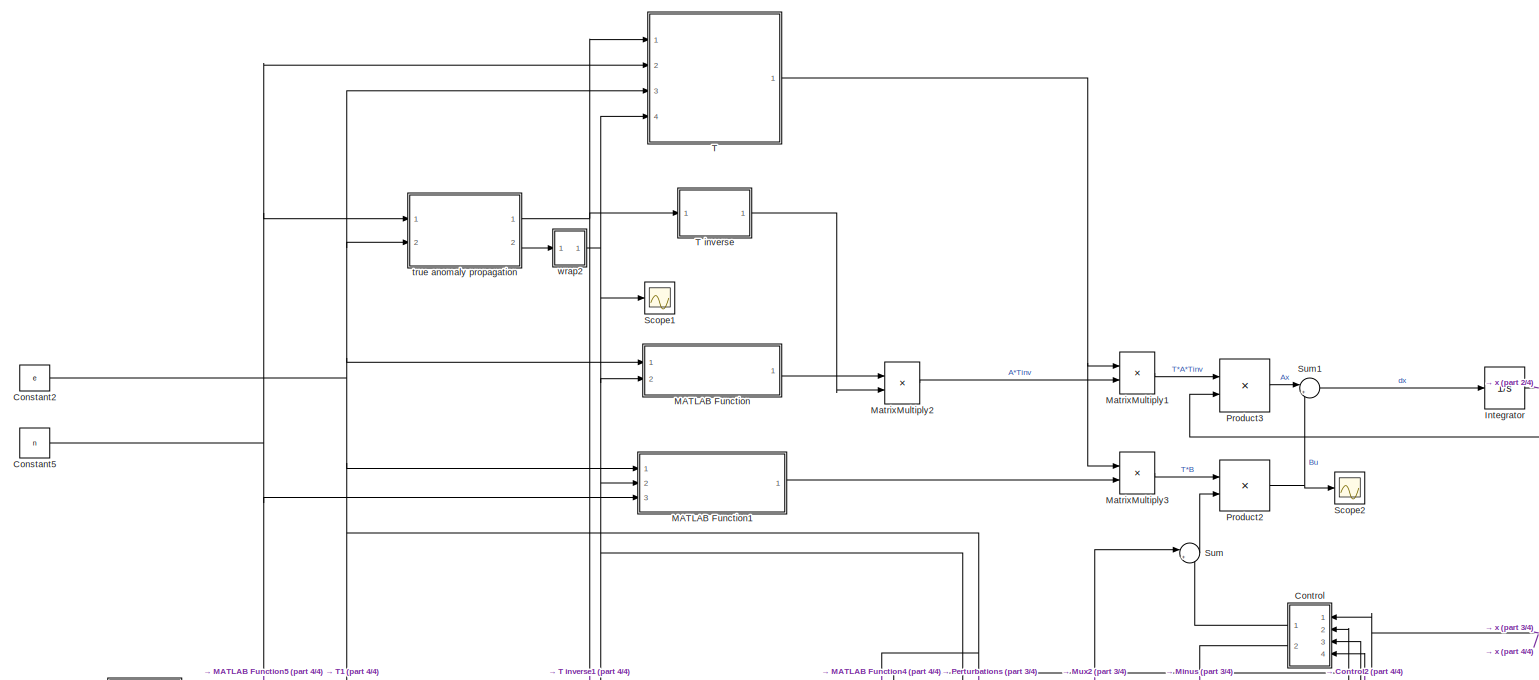
[diagram: root canvas - part 1/4, full width, top band]
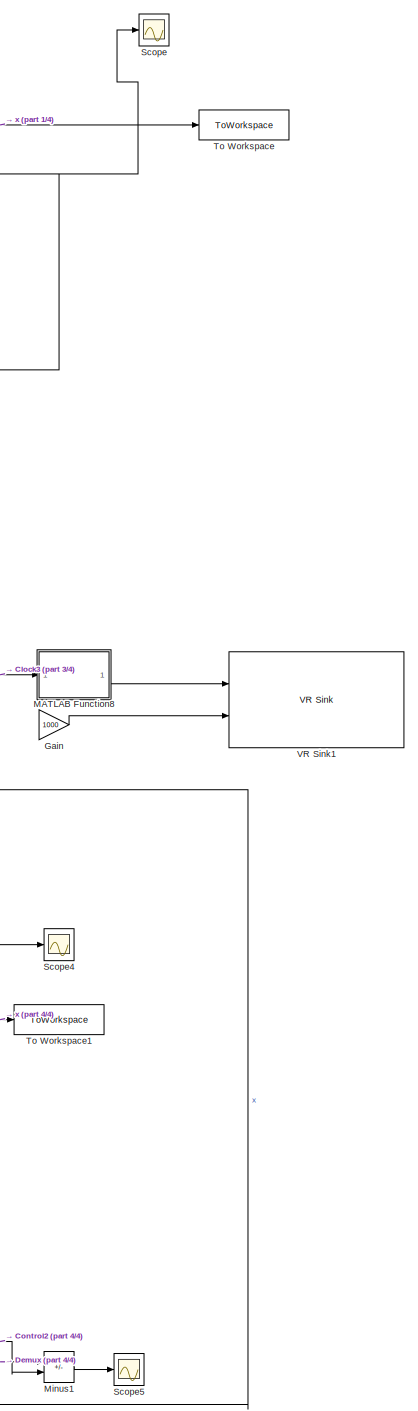
[diagram: root canvas - part 2/4, right side, full height]
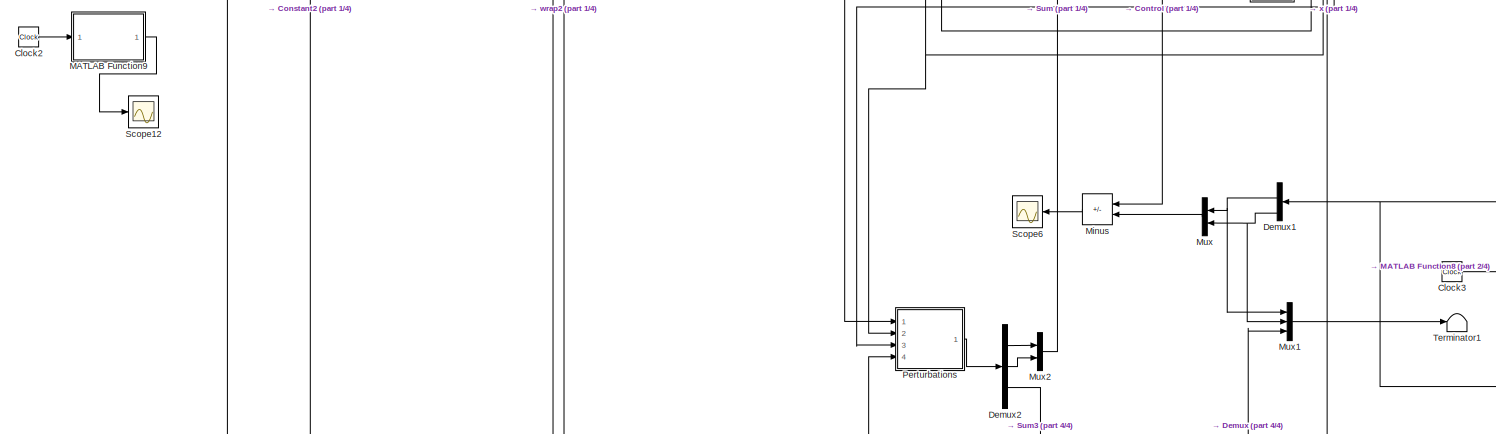
[diagram: root canvas - part 3/4, full width, middle band]
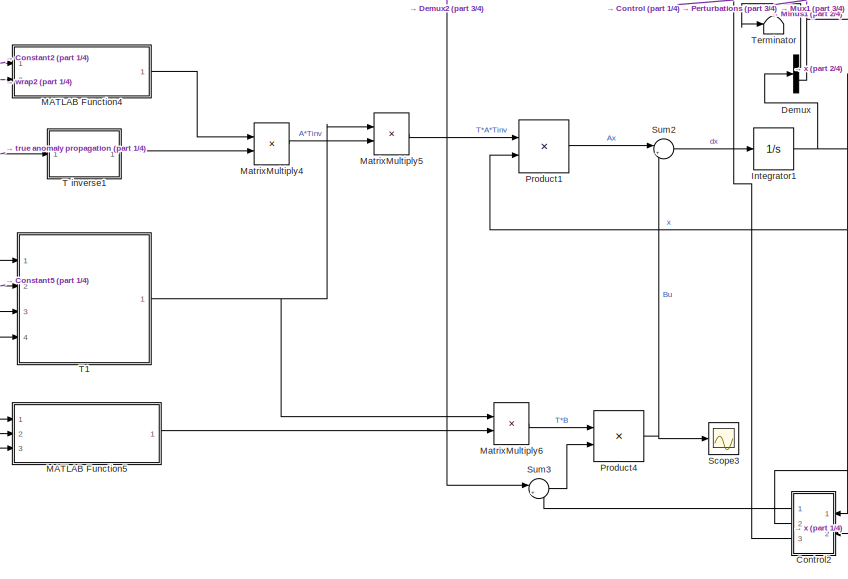
[diagram: root canvas - part 4/4, bottom center region]
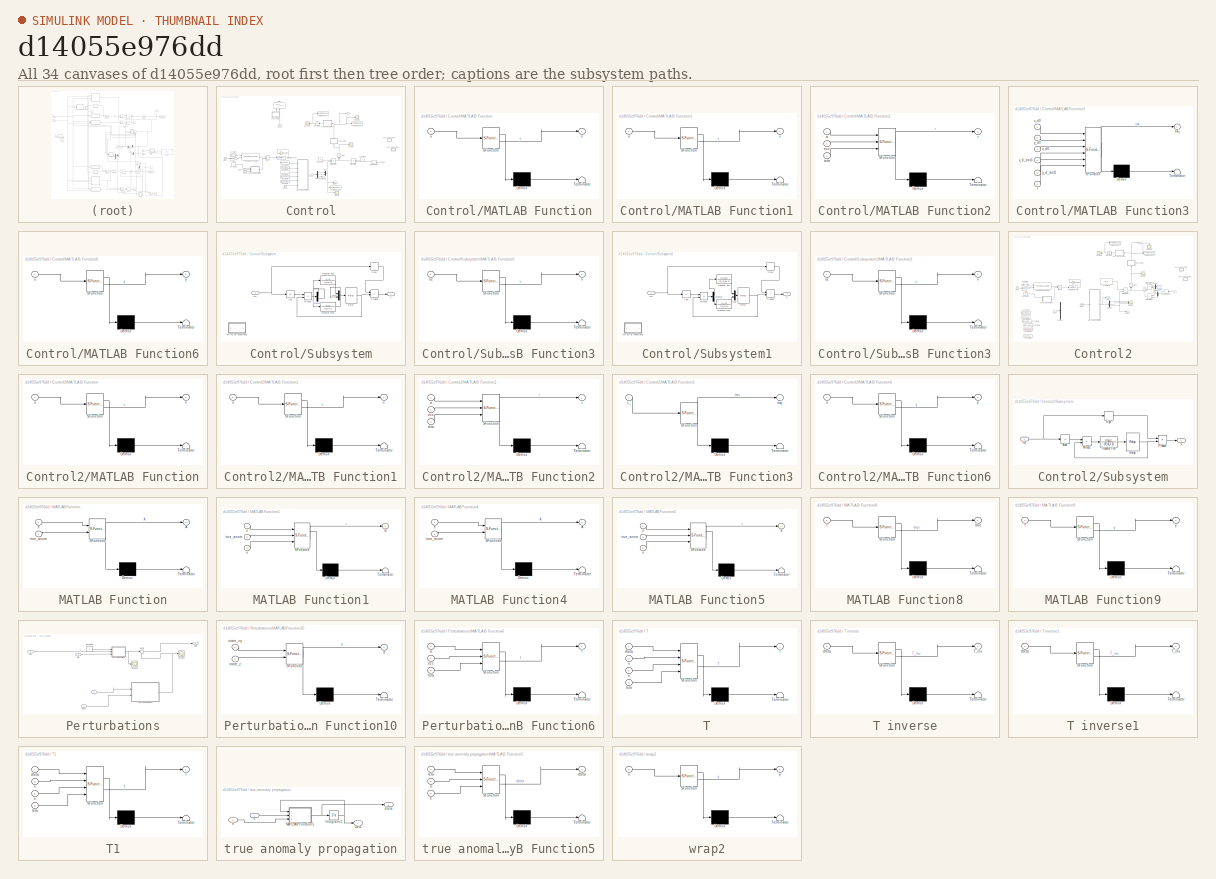
[diagram: thumbnail index - all 34 canvases of the model, root first then tree order]
MODEL slx_d14055e976dd
KIND model
CONFIG AbsTol = auto
CONFIG EnableMultiTasking = off
CONFIG FixedStep = auto
CONFIG MaxStep = auto
CONFIG MinStep = auto
CONFIG RelTol = 1e-3
CONFIG SampleTimeConstraint = Unconstrained
CONFIG SolverName = VariableStepAuto
CONFIG StartTime = 0.0
CONFIG StopTime = 10000
BLOCK [Clock] Clock2
  Commented = on
BLOCK [Clock] Clock3
  Commented = on
BLOCK [Constant] Constant2
  Value = e
BLOCK [Constant] Constant5
  Value = n
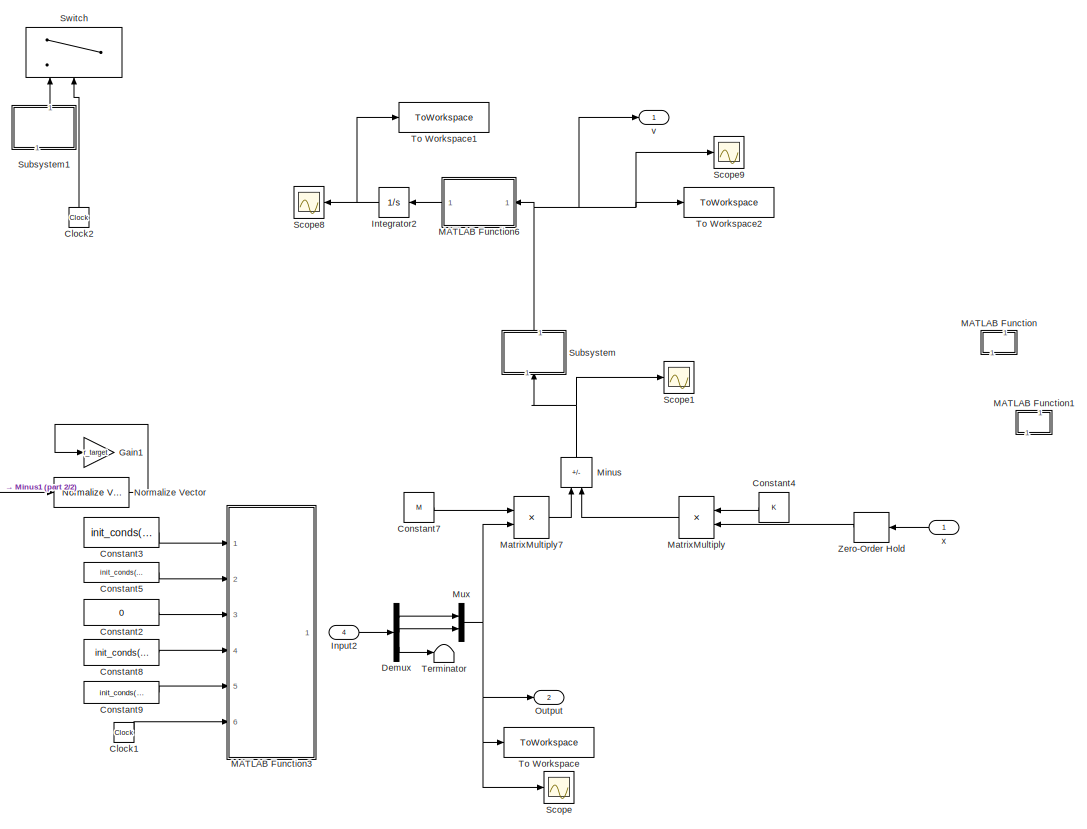
[diagram: Control - part 1/2, center side, full height]
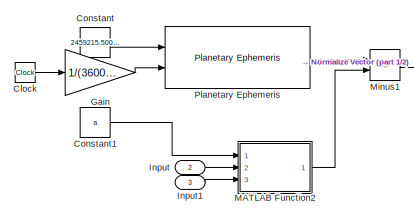
[diagram: Control - part 2/2, middle left region]
BLOCK [SubSystem] Control
  NameLocation = top
  Ports = [4, 2]
  RequestExecContextInheritance = off
BLOCK [Clock] Control/Clock
  Commented = on
BLOCK [Clock] Control/Clock1
  Commented = on
BLOCK [Clock] Control/Clock2
  Commented = on
  NameLocation = right
BLOCK [Constant] Control/Constant
  Commented = on
  Value = 2459215.50000
BLOCK [Constant] Control/Constant1
  Commented = on
  Value = a
BLOCK [Constant] Control/Constant2
  Commented = on
  Value = 0
BLOCK [Constant] Control/Constant3
  Commented = on
  Value = init_conds(2)
BLOCK [Constant] Control/Constant4
  NameLocation = top
  Value = K
BLOCK [Constant] Control/Constant5
  Commented = on
  Value = init_conds(4)
BLOCK [Constant] Control/Constant7
  Value = M
BLOCK [Constant] Control/Constant8
  Commented = on
  Value = init_conds(1)
BLOCK [Constant] Control/Constant9
  Commented = on
  Value = init_conds(3)
BLOCK [Demux] Control/Demux
  Outputs = 3
  Ports = [1, 3]
BLOCK [Gain] Control/Gain
  Commented = on
  Gain = 1/(3600*24)
BLOCK [Gain] Control/Gain1
  Commented = on
  Gain = r_target
BLOCK [Inport] Control/Input
  Port = 2
BLOCK [Inport] Control/Input1
  Port = 3
BLOCK [Inport] Control/Input2
  Port = 4
BLOCK [Integrator] Control/Integrator2
  NameLocation = top
  Ports = [1, 1]
BLOCK [SubSystem] Control/MATLAB Function
  Commented = through
  ErrorFcn = Stateflow.Translate.translate
  NameLocation = right
  PermitHierarchicalResolution = ExplicitOnly
  Ports = [1, 1]
  RequestExecContextInheritance = off
  SFBlockType = MATLAB Function
  TreatAsAtomicUnit = on
BLOCK [Demux] Control/MATLAB Function/ Demux 
  Outputs = 1
  Ports = [1, 1]
BLOCK [S-Function] Control/MATLAB Function/ SFunction 
  EnableBusSupport = on
  FunctionName = sf_sfun
  PortCounts = [1 2]
  Ports = [1, 2]
  SFcnIsStateOwnerBlock = off
  SFunctionDeploymentMode = off
  Tag = Stateflow S-Function 22
BLOCK [Terminator] Control/MATLAB Function/ Terminator 
BLOCK [Inport] Control/MATLAB Function/u
BLOCK [Outport] Control/MATLAB Function/v
BLOCK [SubSystem] Control/MATLAB Function1
  Commented = through
  ErrorFcn = Stateflow.Translate.translate
  NameLocation = right
  PermitHierarchicalResolution = ExplicitOnly
  Ports = [1, 1]
  RequestExecContextInheritance = off
  SFBlockType = MATLAB Function
  TreatAsAtomicUnit = on
BLOCK [Demux] Control/MATLAB Function1/ Demux 
  Outputs = 1
  Ports = [1, 1]
BLOCK [S-Function] Control/MATLAB Function1/ SFunction 
  EnableBusSupport = on
  FunctionName = sf_sfun
  PortCounts = [1 2]
  Ports = [1, 2]
  SFcnIsStateOwnerBlock = off
  SFunctionDeploymentMode = off
  Tag = Stateflow S-Function 23
BLOCK [Terminator] Control/MATLAB Function1/ Terminator 
BLOCK [Inport] Control/MATLAB Function1/u
BLOCK [Outport] Control/MATLAB Function1/v
BLOCK [SubSystem] Control/MATLAB Function2
  Commented = on
  ErrorFcn = Stateflow.Translate.translate
  PermitHierarchicalResolution = ExplicitOnly
  Ports = [3, 1]
  RequestExecContextInheritance = off
  SFBlockType = MATLAB Function
  TreatAsAtomicUnit = on
BLOCK [Demux] Control/MATLAB Function2/ Demux 
  Outputs = 1
  Ports = [1, 1]
BLOCK [S-Function] Control/MATLAB Function2/ SFunction 
  EnableBusSupport = on
  FunctionName = sf_sfun
  PortCounts = [3 2]
  Ports = [3, 2]
  SFcnIsStateOwnerBlock = off
  SFunctionDeploymentMode = off
  Tag = Stateflow S-Function 24
BLOCK [Terminator] Control/MATLAB Function2/ Terminator 
BLOCK [Inport] Control/MATLAB Function2/a
BLOCK [Inport] Control/MATLAB Function2/ecc
  Port = 2
BLOCK [Outport] Control/MATLAB Function2/r
BLOCK [Inport] Control/MATLAB Function2/teta
  Port = 3
BLOCK [SubSystem] Control/MATLAB Function3
  Commented = on
  ErrorFcn = Stateflow.Translate.translate
  PermitHierarchicalResolution = ExplicitOnly
  Ports = [6, 1]
  RequestExecContextInheritance = off
  SFBlockType = MATLAB Function
  TreatAsAtomicUnit = on
BLOCK [Demux] Control/MATLAB Function3/ Demux 
  Outputs = 1
  Ports = [1, 1]
BLOCK [S-Function] Control/MATLAB Function3/ SFunction 
  EnableBusSupport = on
  FunctionName = sf_sfun
  PortCounts = [6 2]
  Ports = [6, 2]
  SFcnIsStateOwnerBlock = off
  SFunctionDeploymentMode = off
  Tag = Stateflow S-Function 26
BLOCK [Terminator] Control/MATLAB Function3/ Terminator 
BLOCK [Inport] Control/MATLAB Function3/t
  Port = 6
BLOCK [Outport] Control/MATLAB Function3/traj
BLOCK [Inport] Control/MATLAB Function3/x_d0
BLOCK [Inport] Control/MATLAB Function3/x_d_dot0
  Port = 4
BLOCK [Inport] Control/MATLAB Function3/y_d0
  Port = 2
BLOCK [Inport] Control/MATLAB Function3/y_d_dot0
  Port = 5
BLOCK [Inport] Control/MATLAB Function3/z_d0
  Port = 3
BLOCK [SubSystem] Control/MATLAB Function6
  ErrorFcn = Stateflow.Translate.translate
  NameLocation = top
  PermitHierarchicalResolution = ExplicitOnly
  Ports = [1, 1]
  RequestExecContextInheritance = off
  SFBlockType = MATLAB Function
  TreatAsAtomicUnit = on
BLOCK [Demux] Control/MATLAB Function6/ Demux 
  Outputs = 1
  Ports = [1, 1]
BLOCK [S-Function] Control/MATLAB Function6/ SFunction 
  EnableBusSupport = on
  FunctionName = sf_sfun
  PortCounts = [1 2]
  Ports = [1, 2]
  SFcnIsStateOwnerBlock = off
  SFunctionDeploymentMode = off
  Tag = Stateflow S-Function 17
BLOCK [Terminator] Control/MATLAB Function6/ Terminator 
BLOCK [Inport] Control/MATLAB Function6/u
BLOCK [Outport] Control/MATLAB Function6/y
BLOCK [Product] Control/MatrixMultiply
  Multiplication = Matrix(*)
  NameLocation = top
  Ports = [2, 1]
BLOCK [Product] Control/MatrixMultiply7
  Multiplication = Matrix(*)
  Ports = [2, 1]
BLOCK [Sum] Control/Minus
  IconShape = rectangular
  Inputs = +-
  NameLocation = right
  Ports = [2, 1]
BLOCK [Sum] Control/Minus1
  Commented = on
  IconShape = rectangular
  Inputs = +-
  Ports = [2, 1]
BLOCK [Mux] Control/Mux
  DisplayOption = bar
  Inputs = 2
  Ports = [2, 1]
BLOCK [Reference] Control/Normalize Vector  REF=vrlib/Utilities/Normalize Vector
  Commented = on
  Ports = [1, 1]
  SourceBlock = vrlib/Utilities/Normalize Vector
  SourceProductBaseCode = SL
  SourceType = Normalize Vector
BLOCK [Outport] Control/Output
  Port = 2
BLOCK [Reference] Control/Planetary Ephemeris  REF=aerolibcelestial/Planetary Ephemeris
  Commented = on
  Ports = [2, 1]
  SourceBlock = aerolibcelestial/Planetary Ephemeris
  SourceProductBaseCode = AE
  SourceType = PlanetaryEphemeris
BLOCK [Scope] Control/Scope
  Floating = off
  NumInputPorts = 1
  Ports = [1]
  ScopeSpecificationString = Simulink.scopes.TimeScopeBlockCfg('CurrentConfiguration', extmgr.ConfigurationSet(extmgr.Configuration('Core','General UI',true),extmgr.Configuration('Core','Source UI',true),extmgr.Configuration('Sources','WiredSimulink',true,'DataLoggingVariableName','ScopeData1'),extmgr.Configuration('Visuals','Time Domain',true,'SerializedDisplays',{struct('MinYLimReal','-1.6834','MaxYLimReal','1.6956','YLabel...<+1402ch>
BLOCK [Scope] Control/Scope1
  Commented = on
  Floating = off
  NumInputPorts = 1
  Ports = [1]
  ScopeSpecificationString = Simulink.scopes.TimeScopeBlockCfg('CurrentConfiguration', extmgr.ConfigurationSet(extmgr.Configuration('Core','General UI',true),extmgr.Configuration('Core','Source UI',true),extmgr.Configuration('Sources','WiredSimulink',true,'DataLoggingVariableName','ScopeData1'),extmgr.Configuration('Visuals','Time Domain',true,'SerializedDisplays',{struct('MinYLimReal','-0.0000032','MaxYLimReal','0.0000032','...<+1447ch>
BLOCK [Scope] Control/Scope8
  Commented = on
  Floating = off
  NameLocation = top
  NumInputPorts = 1
  Ports = [1]
  ScopeSpecificationString = Simulink.scopes.TimeScopeBlockCfg('CurrentConfiguration', extmgr.ConfigurationSet(extmgr.Configuration('Core','General UI',true),extmgr.Configuration('Core','Source UI',true),extmgr.Configuration('Sources','WiredSimulink',true,'DataLoggingVariableName','ScopeData2'),extmgr.Configuration('Visuals','Time Domain',true,'SerializedDisplays',{struct('MinYLimReal','-0.05274','MaxYLimReal','0.47467','YLab...<+1445ch>
BLOCK [Scope] Control/Scope9
  Commented = on
  Floating = off
  NumInputPorts = 1
  Ports = [1]
  ScopeSpecificationString = Simulink.scopes.TimeScopeBlockCfg('CurrentConfiguration', extmgr.ConfigurationSet(extmgr.Configuration('Core','General UI',true),extmgr.Configuration('Core','Source UI',true),extmgr.Configuration('Sources','WiredSimulink',true,'DataLoggingVariableName','ScopeData3'),extmgr.Configuration('Visuals','Time Domain',true,'SerializedDisplays',{struct('MinYLimReal','-0.000013','MaxYLimReal','0.000013','YL...<+1484ch>
BLOCK [SubSystem] Control/Subsystem
  NameLocation = right
  Ports = [1, 1]
  RequestExecContextInheritance = off
BLOCK [Abs] Control/Subsystem/Abs
  SaturateOnIntegerOverflow = off
BLOCK [Demux] Control/Subsystem/Demux
  Outputs = 2
  Ports = [1, 2]
BLOCK [Inport] Control/Subsystem/In2
BLOCK [SubSystem] Control/Subsystem/MATLAB Function3
  Commented = on
  ErrorFcn = Stateflow.Translate.translate
  PermitHierarchicalResolution = ExplicitOnly
  Ports = [1, 1]
  RequestExecContextInheritance = off
  SFBlockType = MATLAB Function
  TreatAsAtomicUnit = on
BLOCK [Demux] Control/Subsystem/MATLAB Function3/ Demux 
  Outputs = 1
  Ports = [1, 1]
BLOCK [S-Function] Control/Subsystem/MATLAB Function3/ SFunction 
  EnableBusSupport = on
  FunctionName = sf_sfun
  PortCounts = [1 2]
  Ports = [1, 2]
  SFcnIsStateOwnerBlock = off
  SFunctionDeploymentMode = off
  Tag = Stateflow S-Function 25
BLOCK [Terminator] Control/Subsystem/MATLAB Function3/ Terminator 
BLOCK [Inport] Control/Subsystem/MATLAB Function3/uc
BLOCK [Outport] Control/Subsystem/MATLAB Function3/v
BLOCK [Sum] Control/Subsystem/Minus2
  IconShape = rectangular
  Inputs = +-
  Ports = [2, 1]
BLOCK [Mux] Control/Subsystem/Mux
  DisplayOption = bar
  Inputs = 2
  Ports = [2, 1]
BLOCK [Product] Control/Subsystem/Product
  Ports = [2, 1]
BLOCK [Relay] Control/Subsystem/Relay
  OffSwitchValue = 0.00000005
  OnOutputValue = 0.00005
  OnSwitchValue = 0.00005
BLOCK [Signum] Control/Subsystem/Sign
BLOCK [TransferFcn] Control/Subsystem/Transfer Fcn
  Denominator = [d_lp 1]
  Numerator = n_lp
BLOCK [TransferFcn] Control/Subsystem/Transfer Fcn1
  Denominator = [d_lp 1]
  Numerator = n_lp
BLOCK [Outport] Control/Subsystem/v
BLOCK [SubSystem] Control/Subsystem1
  Commented = on
  NameLocation = right
  Ports = [1, 1]
  RequestExecContextInheritance = off
BLOCK [Abs] Control/Subsystem1/Abs
  SaturateOnIntegerOverflow = off
BLOCK [Demux] Control/Subsystem1/Demux
  Outputs = 2
  Ports = [1, 2]
BLOCK [Inport] Control/Subsystem1/In2
BLOCK [SubSystem] Control/Subsystem1/MATLAB Function3
  Commented = on
  ErrorFcn = Stateflow.Translate.translate
  PermitHierarchicalResolution = ExplicitOnly
  Ports = [1, 1]
  RequestExecContextInheritance = off
  SFBlockType = MATLAB Function
  TreatAsAtomicUnit = on
BLOCK [Demux] Control/Subsystem1/MATLAB Function3/ Demux 
  Outputs = 1
  Ports = [1, 1]
BLOCK [S-Function] Control/Subsystem1/MATLAB Function3/ SFunction 
  EnableBusSupport = on
  FunctionName = sf_sfun
  PortCounts = [1 2]
  Ports = [1, 2]
  SFcnIsStateOwnerBlock = off
  SFunctionDeploymentMode = off
  Tag = Stateflow S-Function 3
BLOCK [Terminator] Control/Subsystem1/MATLAB Function3/ Terminator 
BLOCK [Inport] Control/Subsystem1/MATLAB Function3/uc
BLOCK [Outport] Control/Subsystem1/MATLAB Function3/v
BLOCK [Sum] Control/Subsystem1/Minus2
  IconShape = rectangular
  Inputs = +-
  Ports = [2, 1]
BLOCK [Mux] Control/Subsystem1/Mux
  DisplayOption = bar
  Inputs = 2
  Ports = [2, 1]
BLOCK [Product] Control/Subsystem1/Product
  Ports = [2, 1]
BLOCK [Relay] Control/Subsystem1/Relay
  OffSwitchValue = 0.0000001
  OnOutputValue = 0.00001
  OnSwitchValue = 0.00001
BLOCK [Signum] Control/Subsystem1/Sign
BLOCK [TransferFcn] Control/Subsystem1/Transfer Fcn
  Denominator = [d_lp_sk 1]
  Numerator = n_lp_sk
BLOCK [TransferFcn] Control/Subsystem1/Transfer Fcn1
  Denominator = [d_lp 1]
  Numerator = [n_lp]
BLOCK [Outport] Control/Subsystem1/v
BLOCK [Switch] Control/Switch
  Commented = on
  Criteria = u2 > Threshold
  InputSameDT = off
  NameLocation = right
  SaturateOnIntegerOverflow = off
BLOCK [Terminator] Control/Terminator
BLOCK [ToWorkspace] Control/To Workspace
  FixptAsFi = on
  MaxDataPoints = inf
  Ports = [1]
  SampleTime = -1
  SaveFormat = Timeseries
  VariableName = ref
BLOCK [ToWorkspace] Control/To Workspace1
  FixptAsFi = on
  MaxDataPoints = inf
  Ports = [1]
  SampleTime = -1
  SaveFormat = Timeseries
  VariableName = deltav
BLOCK [ToWorkspace] Control/To Workspace2
  FixptAsFi = on
  MaxDataPoints = inf
  Ports = [1]
  SampleTime = -1
  SaveFormat = Timeseries
  VariableName = thrust
BLOCK [ZeroOrderHold] Control/Zero-Order Hold
  NameLocation = top
BLOCK [Outport] Control/v
BLOCK [Inport] Control/x
  NameLocation = top
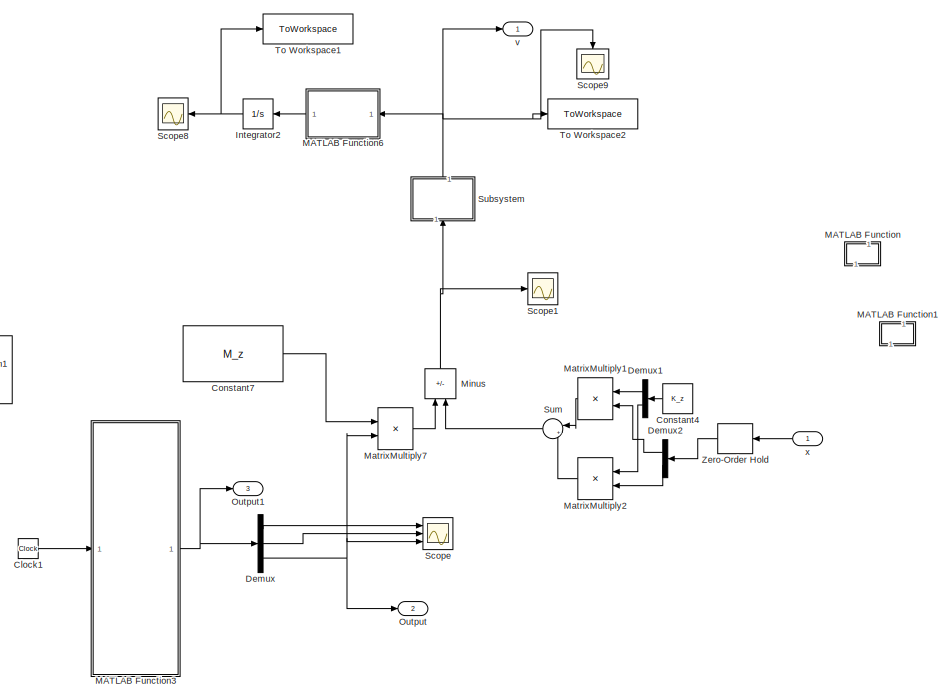
[diagram: Control2 - part 1/2, right side, full height]
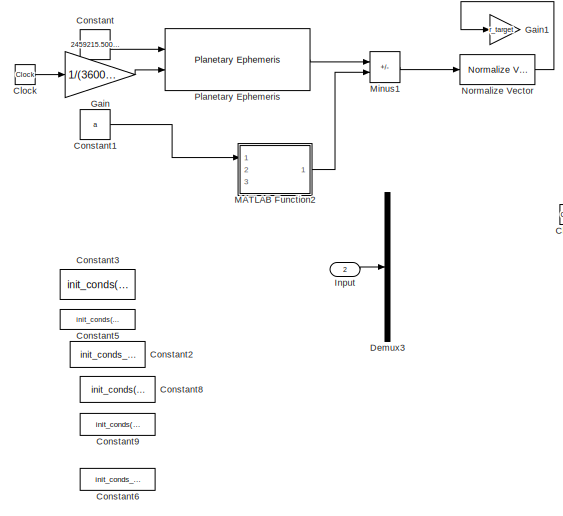
[diagram: Control2 - part 2/2, bottom left region]
BLOCK [SubSystem] Control2
  NameLocation = top
  Ports = [2, 3]
  RequestExecContextInheritance = off
BLOCK [Clock] Control2/Clock
  Commented = on
BLOCK [Clock] Control2/Clock1
BLOCK [Constant] Control2/Constant
  Commented = on
  Value = 2459215.50000
BLOCK [Constant] Control2/Constant1
  Commented = on
  Value = a
BLOCK [Constant] Control2/Constant2
  Commented = on
  Value = init_conds_z(2)
BLOCK [Constant] Control2/Constant3
  Commented = on
  Value = init_conds(2)
BLOCK [Constant] Control2/Constant4
  NameLocation = top
  Value = K_z
BLOCK [Constant] Control2/Constant5
  Commented = on
  Value = init_conds(4)
BLOCK [Constant] Control2/Constant6
  Commented = on
  Value = init_conds_z(1)
BLOCK [Constant] Control2/Constant7
  Value = M_z
BLOCK [Constant] Control2/Constant8
  Commented = on
  Value = init_conds(1)
BLOCK [Constant] Control2/Constant9
  Commented = on
  Value = init_conds(3)
BLOCK [Demux] Control2/Demux
  Outputs = 3
  Ports = [1, 3]
BLOCK [Demux] Control2/Demux1
  NameLocation = top
  Outputs = 2
  Ports = [1, 2]
BLOCK [Demux] Control2/Demux2
  NameLocation = top
  Outputs = 2
  Ports = [1, 2]
BLOCK [Demux] Control2/Demux3
  Commented = on
  Ports = [1, 4]
BLOCK [Gain] Control2/Gain
  Commented = on
  Gain = 1/(3600*24)
BLOCK [Gain] Control2/Gain1
  Commented = on
  Gain = r_target
BLOCK [Inport] Control2/Input
  Port = 2
BLOCK [Integrator] Control2/Integrator2
  NameLocation = top
  Ports = [1, 1]
BLOCK [SubSystem] Control2/MATLAB Function
  Commented = through
  ErrorFcn = Stateflow.Translate.translate
  NameLocation = right
  PermitHierarchicalResolution = ExplicitOnly
  Ports = [1, 1]
  RequestExecContextInheritance = off
  SFBlockType = MATLAB Function
  TreatAsAtomicUnit = on
BLOCK [Demux] Control2/MATLAB Function/ Demux 
  Outputs = 1
  Ports = [1, 1]
BLOCK [S-Function] Control2/MATLAB Function/ SFunction 
  EnableBusSupport = on
  FunctionName = sf_sfun
  PortCounts = [1 2]
  Ports = [1, 2]
  SFcnIsStateOwnerBlock = off
  SFunctionDeploymentMode = off
  Tag = Stateflow S-Function 18
BLOCK [Terminator] Control2/MATLAB Function/ Terminator 
BLOCK [Inport] Control2/MATLAB Function/u
BLOCK [Outport] Control2/MATLAB Function/v
BLOCK [SubSystem] Control2/MATLAB Function1
  Commented = through
  ErrorFcn = Stateflow.Translate.translate
  NameLocation = right
  PermitHierarchicalResolution = ExplicitOnly
  Ports = [1, 1]
  RequestExecContextInheritance = off
  SFBlockType = MATLAB Function
  TreatAsAtomicUnit = on
BLOCK [Demux] Control2/MATLAB Function1/ Demux 
  Outputs = 1
  Ports = [1, 1]
BLOCK [S-Function] Control2/MATLAB Function1/ SFunction 
  EnableBusSupport = on
  FunctionName = sf_sfun
  PortCounts = [1 2]
  Ports = [1, 2]
  SFcnIsStateOwnerBlock = off
  SFunctionDeploymentMode = off
  Tag = Stateflow S-Function 28
BLOCK [Terminator] Control2/MATLAB Function1/ Terminator 
BLOCK [Inport] Control2/MATLAB Function1/u
BLOCK [Outport] Control2/MATLAB Function1/v
BLOCK [SubSystem] Control2/MATLAB Function2
  Commented = on
  ErrorFcn = Stateflow.Translate.translate
  PermitHierarchicalResolution = ExplicitOnly
  Ports = [3, 1]
  RequestExecContextInheritance = off
  SFBlockType = MATLAB Function
  TreatAsAtomicUnit = on
BLOCK [Demux] Control2/MATLAB Function2/ Demux 
  Outputs = 1
  Ports = [1, 1]
BLOCK [S-Function] Control2/MATLAB Function2/ SFunction 
  EnableBusSupport = on
  FunctionName = sf_sfun
  PortCounts = [3 2]
  Ports = [3, 2]
  SFcnIsStateOwnerBlock = off
  SFunctionDeploymentMode = off
  Tag = Stateflow S-Function 29
BLOCK [Terminator] Control2/MATLAB Function2/ Terminator 
BLOCK [Inport] Control2/MATLAB Function2/a
BLOCK [Inport] Control2/MATLAB Function2/ecc
  Port = 2
BLOCK [Outport] Control2/MATLAB Function2/r
BLOCK [Inport] Control2/MATLAB Function2/teta
  Port = 3
BLOCK [SubSystem] Control2/MATLAB Function3
  ErrorFcn = Stateflow.Translate.translate
  PermitHierarchicalResolution = ExplicitOnly
  Ports = [1, 1]
  RequestExecContextInheritance = off
  SFBlockType = MATLAB Function
  TreatAsAtomicUnit = on
BLOCK [Demux] Control2/MATLAB Function3/ Demux 
  Outputs = 1
  Ports = [1, 1]
BLOCK [S-Function] Control2/MATLAB Function3/ SFunction 
  EnableBusSupport = on
  FunctionName = sf_sfun
  PortCounts = [1 2]
  Ports = [1, 2]
  SFcnIsStateOwnerBlock = off
  SFunctionDeploymentMode = off
  Tag = Stateflow S-Function 30
BLOCK [Terminator] Control2/MATLAB Function3/ Terminator 
BLOCK [Inport] Control2/MATLAB Function3/t_
BLOCK [Outport] Control2/MATLAB Function3/traj
BLOCK [SubSystem] Control2/MATLAB Function6
  ErrorFcn = Stateflow.Translate.translate
  NameLocation = top
  PermitHierarchicalResolution = ExplicitOnly
  Ports = [1, 1]
  RequestExecContextInheritance = off
  SFBlockType = MATLAB Function
  TreatAsAtomicUnit = on
BLOCK [Demux] Control2/MATLAB Function6/ Demux 
  Outputs = 1
  Ports = [1, 1]
BLOCK [S-Function] Control2/MATLAB Function6/ SFunction 
  EnableBusSupport = on
  FunctionName = sf_sfun
  PortCounts = [1 2]
  Ports = [1, 2]
  SFcnIsStateOwnerBlock = off
  SFunctionDeploymentMode = off
  Tag = Stateflow S-Function 31
BLOCK [Terminator] Control2/MATLAB Function6/ Terminator 
BLOCK [Inport] Control2/MATLAB Function6/u
BLOCK [Outport] Control2/MATLAB Function6/y
BLOCK [Product] Control2/MatrixMultiply1
  Multiplication = Matrix(*)
  NameLocation = top
  Ports = [2, 1]
BLOCK [Product] Control2/MatrixMultiply2
  Multiplication = Matrix(*)
  NameLocation = top
  Ports = [2, 1]
BLOCK [Product] Control2/MatrixMultiply7
  Multiplication = Matrix(*)
  Ports = [2, 1]
BLOCK [Sum] Control2/Minus
  IconShape = rectangular
  Inputs = +-
  NameLocation = right
  Ports = [2, 1]
BLOCK [Sum] Control2/Minus1
  Commented = on
  IconShape = rectangular
  Inputs = +-
  Ports = [2, 1]
BLOCK [Reference] Control2/Normalize Vector  REF=vrlib/Utilities/Normalize Vector
  Commented = on
  Ports = [1, 1]
  SourceBlock = vrlib/Utilities/Normalize Vector
  SourceProductBaseCode = SL
  SourceType = Normalize Vector
BLOCK [Outport] Control2/Output
  Port = 2
BLOCK [Outport] Control2/Output1
  Port = 3
BLOCK [Reference] Control2/Planetary Ephemeris  REF=aerolibcelestial/Planetary Ephemeris
  Commented = on
  Ports = [2, 1]
  SourceBlock = aerolibcelestial/Planetary Ephemeris
  SourceProductBaseCode = AE
  SourceType = PlanetaryEphemeris
BLOCK [Scope] Control2/Scope
  Floating = off
  NumInputPorts = 3
  Ports = [3]
  ScopeSpecificationString = Simulink.scopes.TimeScopeBlockCfg('CurrentConfiguration', extmgr.ConfigurationSet(extmgr.Configuration('Core','General UI',true),extmgr.Configuration('Core','Source UI',true),extmgr.Configuration('Sources','WiredSimulink',true,'DataLoggingVariableName','ScopeData1'),extmgr.Configuration('Visuals','Time Domain',true,'SerializedDisplays',{struct('MinYLimReal','-2.25128','MaxYLimReal','0.26153','YLab...<+1532ch>
BLOCK [Scope] Control2/Scope1
  Commented = on
  Floating = off
  NumInputPorts = 1
  Ports = [1]
  ScopeSpecificationString = Simulink.scopes.TimeScopeBlockCfg('CurrentConfiguration', extmgr.ConfigurationSet(extmgr.Configuration('Core','General UI',true),extmgr.Configuration('Core','Source UI',true),extmgr.Configuration('Sources','WiredSimulink',true,'DataLoggingVariableName','ScopeData1'),extmgr.Configuration('Visuals','Time Domain',true,'SerializedDisplays',{struct('MinYLimReal','-0.00000011','MaxYLimReal','0.00000001'...<+1443ch>
BLOCK [Scope] Control2/Scope8
  Commented = on
  Floating = off
  NameLocation = top
  NumInputPorts = 1
  Ports = [1]
  ScopeSpecificationString = Simulink.scopes.TimeScopeBlockCfg('CurrentConfiguration', extmgr.ConfigurationSet(extmgr.Configuration('Core','General UI',true),extmgr.Configuration('Core','Source UI',true),extmgr.Configuration('Sources','WiredSimulink',true,'DataLoggingVariableName','ScopeData2'),extmgr.Configuration('Visuals','Time Domain',true,'SerializedDisplays',{struct('MinYLimReal','-1.00000','MaxYLimReal','1.00000','YLab...<+1445ch>
BLOCK [Scope] Control2/Scope9
  Commented = on
  Floating = off
  NameLocation = left
  NumInputPorts = 1
  Ports = [1]
  ScopeSpecificationString = Simulink.scopes.TimeScopeBlockCfg('CurrentConfiguration', extmgr.ConfigurationSet(extmgr.Configuration('Core','General UI',true),extmgr.Configuration('Core','Source UI',true),extmgr.Configuration('Sources','WiredSimulink',true,'DataLoggingVariableName','ScopeData3'),extmgr.Configuration('Visuals','Time Domain',true,'SerializedDisplays',{struct('MinYLimReal','-1.00000','MaxYLimReal','1.00000','YLab...<+1487ch>
BLOCK [SubSystem] Control2/Subsystem
  NameLocation = right
  Ports = [1, 1]
  RequestExecContextInheritance = off
BLOCK [Abs] Control2/Subsystem/Abs
  SaturateOnIntegerOverflow = off
BLOCK [Inport] Control2/Subsystem/In2
BLOCK [Sum] Control2/Subsystem/Minus2
  IconShape = rectangular
  Inputs = +-
  Ports = [2, 1]
BLOCK [Product] Control2/Subsystem/Product
  Ports = [2, 1]
BLOCK [Relay] Control2/Subsystem/Relay
  OffSwitchValue = 0.00000005
  OnOutputValue = 0.000005
  OnSwitchValue = 0.000005
BLOCK [Signum] Control2/Subsystem/Sign
BLOCK [TransferFcn] Control2/Subsystem/Transfer Fcn
  Denominator = [d_lp_z 1]
  Numerator = n_lp_z
BLOCK [Outport] Control2/Subsystem/v
BLOCK [Sum] Control2/Sum
  Inputs = |++
  NameLocation = top
  Ports = [2, 1]
BLOCK [ToWorkspace] Control2/To Workspace1
  FixptAsFi = on
  MaxDataPoints = inf
  Ports = [1]
  SampleTime = -1
  SaveFormat = Timeseries
  VariableName = deltav_z
BLOCK [ToWorkspace] Control2/To Workspace2
  FixptAsFi = on
  MaxDataPoints = inf
  Ports = [1]
  SampleTime = -1
  SaveFormat = Timeseries
  VariableName = thrust_z
BLOCK [ZeroOrderHold] Control2/Zero-Order Hold
  NameLocation = top
BLOCK [Outport] Control2/v
BLOCK [Inport] Control2/x
  NameLocation = top
BLOCK [Demux] Demux
  Outputs = 2
  Ports = [1, 2]
BLOCK [Demux] Demux1
  NameLocation = top
  Ports = [1, 4]
BLOCK [Demux] Demux2
  Outputs = 3
  Ports = [1, 3]
BLOCK [Gain] Gain
  Commented = on
  Gain = 1000
BLOCK [Integrator] Integrator
  InitialCondition = init_conds
  Ports = [1, 1]
BLOCK [Integrator] Integrator1
  InitialCondition = init_conds_z
  Ports = [1, 1]
BLOCK [SubSystem] MATLAB Function
  ErrorFcn = Stateflow.Translate.translate
  PermitHierarchicalResolution = ExplicitOnly
  Ports = [2, 1]
  RequestExecContextInheritance = off
  SFBlockType = MATLAB Function
  TreatAsAtomicUnit = on
BLOCK [Demux] MATLAB Function/ Demux 
  Outputs = 1
  Ports = [1, 1]
BLOCK [S-Function] MATLAB Function/ SFunction 
  EnableBusSupport = on
  FunctionName = sf_sfun
  PortCounts = [2 2]
  Ports = [2, 2]
  SFcnIsStateOwnerBlock = off
  SFunctionDeploymentMode = off
  Tag = Stateflow S-Function 2
BLOCK [Terminator] MATLAB Function/ Terminator 
BLOCK [Outport] MATLAB Function/A
BLOCK [Inport] MATLAB Function/e
BLOCK [Inport] MATLAB Function/true_anom
  Port = 2
BLOCK [SubSystem] MATLAB Function1
  ErrorFcn = Stateflow.Translate.translate
  PermitHierarchicalResolution = ExplicitOnly
  Ports = [3, 1]
  RequestExecContextInheritance = off
  SFBlockType = MATLAB Function
  TreatAsAtomicUnit = on
BLOCK [Demux] MATLAB Function1/ Demux 
  Outputs = 1
  Ports = [1, 1]
BLOCK [S-Function] MATLAB Function1/ SFunction 
  EnableBusSupport = on
  FunctionName = sf_sfun
  PortCounts = [3 2]
  Ports = [3, 2]
  SFcnIsStateOwnerBlock = off
  SFunctionDeploymentMode = off
  Tag = Stateflow S-Function 1
BLOCK [Terminator] MATLAB Function1/ Terminator 
BLOCK [Outport] MATLAB Function1/B
BLOCK [Inport] MATLAB Function1/e
BLOCK [Inport] MATLAB Function1/n
  Port = 3
BLOCK [Inport] MATLAB Function1/true_anom
  Port = 2
BLOCK [SubSystem] MATLAB Function4
  ErrorFcn = Stateflow.Translate.translate
  PermitHierarchicalResolution = ExplicitOnly
  Ports = [2, 1]
  RequestExecContextInheritance = off
  SFBlockType = MATLAB Function
  TreatAsAtomicUnit = on
BLOCK [Demux] MATLAB Function4/ Demux 
  Outputs = 1
  Ports = [1, 1]
BLOCK [S-Function] MATLAB Function4/ SFunction 
  EnableBusSupport = on
  FunctionName = sf_sfun
  PortCounts = [2 2]
  Ports = [2, 2]
  SFcnIsStateOwnerBlock = off
  SFunctionDeploymentMode = off
  Tag = Stateflow S-Function 13
BLOCK [Terminator] MATLAB Function4/ Terminator 
BLOCK [Outport] MATLAB Function4/A
BLOCK [Inport] MATLAB Function4/e
BLOCK [Inport] MATLAB Function4/true_anom
  Port = 2
BLOCK [SubSystem] MATLAB Function5
  ErrorFcn = Stateflow.Translate.translate
  PermitHierarchicalResolution = ExplicitOnly
  Ports = [3, 1]
  RequestExecContextInheritance = off
  SFBlockType = MATLAB Function
  TreatAsAtomicUnit = on
BLOCK [Demux] MATLAB Function5/ Demux 
  Outputs = 1
  Ports = [1, 1]
BLOCK [S-Function] MATLAB Function5/ SFunction 
  EnableBusSupport = on
  FunctionName = sf_sfun
  PortCounts = [3 2]
  Ports = [3, 2]
  SFcnIsStateOwnerBlock = off
  SFunctionDeploymentMode = off
  Tag = Stateflow S-Function 16
BLOCK [Terminator] MATLAB Function5/ Terminator 
BLOCK [Outport] MATLAB Function5/B
BLOCK [Inport] MATLAB Function5/e
BLOCK [Inport] MATLAB Function5/n
  Port = 3
BLOCK [Inport] MATLAB Function5/true_anom
  Port = 2
BLOCK [SubSystem] MATLAB Function8
  Commented = on
  ErrorFcn = Stateflow.Translate.translate
  PermitHierarchicalResolution = ExplicitOnly
  Ports = [1, 1]
  RequestExecContextInheritance = off
  SFBlockType = MATLAB Function
  TreatAsAtomicUnit = on
BLOCK [Demux] MATLAB Function8/ Demux 
  Outputs = 1
  Ports = [1, 1]
BLOCK [S-Function] MATLAB Function8/ SFunction 
  EnableBusSupport = on
  FunctionName = sf_sfun
  PortCounts = [1 2]
  Ports = [1, 2]
  SFcnIsStateOwnerBlock = off
  SFunctionDeploymentMode = off
  Tag = Stateflow S-Function 27
BLOCK [Terminator] MATLAB Function8/ Terminator 
BLOCK [Outport] MATLAB Function8/Vrot
BLOCK [Inport] MATLAB Function8/t
BLOCK [SubSystem] MATLAB Function9
  Commented = on
  ErrorFcn = Stateflow.Translate.translate
  PermitHierarchicalResolution = ExplicitOnly
  Ports = [1, 1]
  RequestExecContextInheritance = off
  SFBlockType = MATLAB Function
  TreatAsAtomicUnit = on
BLOCK [Demux] MATLAB Function9/ Demux 
  Outputs = 1
  Ports = [1, 1]
BLOCK [S-Function] MATLAB Function9/ SFunction 
  EnableBusSupport = on
  FunctionName = sf_sfun
  PortCounts = [1 2]
  Ports = [1, 2]
  SFcnIsStateOwnerBlock = off
  SFunctionDeploymentMode = off
  Tag = Stateflow S-Function 20
BLOCK [Terminator] MATLAB Function9/ Terminator 
BLOCK [Inport] MATLAB Function9/t
BLOCK [Outport] MATLAB Function9/y
BLOCK [Product] MatrixMultiply1
  Multiplication = Matrix(*)
  Ports = [2, 1]
BLOCK [Product] MatrixMultiply2
  Multiplication = Matrix(*)
  Ports = [2, 1]
BLOCK [Product] MatrixMultiply3
  Multiplication = Matrix(*)
  Ports = [2, 1]
BLOCK [Product] MatrixMultiply4
  Multiplication = Matrix(*)
  Ports = [2, 1]
BLOCK [Product] MatrixMultiply5
  Multiplication = Matrix(*)
  Ports = [2, 1]
BLOCK [Product] MatrixMultiply6
  Multiplication = Matrix(*)
  Ports = [2, 1]
BLOCK [Sum] Minus
  IconShape = rectangular
  Inputs = +-
  NameLocation = top
  Ports = [2, 1]
BLOCK [Sum] Minus1
  IconShape = rectangular
  Inputs = +-
  Ports = [2, 1]
BLOCK [Mux] Mux
  DisplayOption = bar
  Inputs = 2
  NameLocation = top
  Ports = [2, 1]
BLOCK [Mux] Mux1
  DisplayOption = bar
  Inputs = 3
  Ports = [3, 1]
BLOCK [Mux] Mux2
  DisplayOption = bar
  Inputs = 2
  Ports = [2, 1]
BLOCK [SubSystem] Perturbations
  Ports = [4, 1]
  RequestExecContextInheritance = off
BLOCK [Constant] Perturbations/Constant4
  Value = a
BLOCK [Inport] Perturbations/Input
  Port = 4
BLOCK [SubSystem] Perturbations/MATLAB Function10
  ErrorFcn = Stateflow.Translate.translate
  PermitHierarchicalResolution = ExplicitOnly
  Ports = [2, 1]
  RequestExecContextInheritance = off
  SFBlockType = MATLAB Function
  TreatAsAtomicUnit = on
BLOCK [Demux] Perturbations/MATLAB Function10/ Demux 
  Outputs = 1
  Ports = [1, 1]
BLOCK [S-Function] Perturbations/MATLAB Function10/ SFunction 
  EnableBusSupport = on
  FunctionName = sf_sfun
  PortCounts = [2 2]
  Ports = [2, 2]
  SFcnIsStateOwnerBlock = off
  SFunctionDeploymentMode = off
  Tag = Stateflow S-Function 21
BLOCK [Terminator] Perturbations/MATLAB Function10/ Terminator 
BLOCK [Outport] Perturbations/MATLAB Function10/a
BLOCK [Inport] Perturbations/MATLAB Function10/state_xy
BLOCK [Inport] Perturbations/MATLAB Function10/state_z
  Port = 2
BLOCK [SubSystem] Perturbations/MATLAB Function6
  ErrorFcn = Stateflow.Translate.translate
  PermitHierarchicalResolution = ExplicitOnly
  Ports = [3, 1]
  RequestExecContextInheritance = off
  SFBlockType = MATLAB Function
  TreatAsAtomicUnit = on
BLOCK [Demux] Perturbations/MATLAB Function6/ Demux 
  Outputs = 1
  Ports = [1, 1]
BLOCK [S-Function] Perturbations/MATLAB Function6/ SFunction 
  EnableBusSupport = on
  FunctionName = sf_sfun
  PortCounts = [3 2]
  Ports = [3, 2]
  SFcnIsStateOwnerBlock = off
  SFunctionDeploymentMode = off
  Tag = Stateflow S-Function 19
BLOCK [Terminator] Perturbations/MATLAB Function6/ Terminator 
BLOCK [Inport] Perturbations/MATLAB Function6/a
BLOCK [Inport] Perturbations/MATLAB Function6/ecc
  Port = 2
BLOCK [Outport] Perturbations/MATLAB Function6/f
BLOCK [Inport] Perturbations/MATLAB Function6/teta
  Port = 3
BLOCK [Outport] Perturbations/Out1
BLOCK [Scope] Perturbations/Scope6
  Floating = off
  NumInputPorts = 1
  Ports = [1]
  ScopeSpecificationString = Simulink.scopes.TimeScopeBlockCfg('CurrentConfiguration', extmgr.ConfigurationSet(extmgr.Configuration('Core','General UI',true),extmgr.Configuration('Core','Source UI',true),extmgr.Configuration('Sources','WiredSimulink',true,'DataLoggingVariableName','ScopeData1'),extmgr.Configuration('Visuals','Time Domain',true,'SerializedDisplays',{struct('MinYLimReal','-0.0000000000002','MaxYLimReal','0.0000...<+1564ch>
BLOCK [Scope] Perturbations/Scope8
  Floating = off
  NumInputPorts = 1
  Ports = [1]
  ScopeSpecificationString = Simulink.scopes.TimeScopeBlockCfg('CurrentConfiguration', extmgr.ConfigurationSet(extmgr.Configuration('Core','General UI',true),extmgr.Configuration('Core','Source UI',true),extmgr.Configuration('Sources','WiredSimulink',true,'DataLoggingVariableName','ScopeData2'),extmgr.Configuration('Visuals','Time Domain',true,'SerializedDisplays',{struct('MinYLimReal','-0.0000000002','MaxYLimReal','0.0000000...<+1438ch>
BLOCK [Sum] Perturbations/Sum3
  Inputs = |++
  Ports = [2, 1]
BLOCK [Inport] Perturbations/ecc
BLOCK [Inport] Perturbations/teta
  Port = 2
BLOCK [Inport] Perturbations/x
  Port = 3
BLOCK [Product] Product1
  Multiplication = Matrix(*)
  NameLocation = top
  Ports = [2, 1]
  SCDEnableBlockLinearizationSpecification = on
BLOCK [Product] Product2
  Multiplication = Matrix(*)
  Ports = [2, 1]
  SCDEnableBlockLinearizationSpecification = on
BLOCK [Product] Product3
  Multiplication = Matrix(*)
  NameLocation = top
  Ports = [2, 1]
  SCDEnableBlockLinearizationSpecification = on
BLOCK [Product] Product4
  Multiplication = Matrix(*)
  Ports = [2, 1]
  SCDEnableBlockLinearizationSpecification = on
BLOCK [Scope] Scope
  Floating = off
  NumInputPorts = 1
  Ports = [1]
  ScopeSpecificationString = Simulink.scopes.TimeScopeBlockCfg('CurrentConfiguration', extmgr.ConfigurationSet(extmgr.Configuration('Core','General UI',true),extmgr.Configuration('Core','Source UI',true),extmgr.Configuration('Sources','WiredSimulink',true),extmgr.Configuration('Visuals','Time Domain',true,'SerializedDisplays',{struct('MinYLimReal','-2.26341','MaxYLimReal','0.37072','YLabelReal','','MinYLimMag','0.00000','MaxY...<+1509ch>
BLOCK [Scope] Scope1
  Commented = on
  Floating = off
  NumInputPorts = 1
  Ports = [1]
  ScopeSpecificationString = Simulink.scopes.TimeScopeBlockCfg('CurrentConfiguration', extmgr.ConfigurationSet(extmgr.Configuration('Core','General UI',true),extmgr.Configuration('Core','Source UI',true),extmgr.Configuration('Sources','WiredSimulink',true,'DataLoggingVariableName','ScopeData1'),extmgr.Configuration('Visuals','Time Domain',true,'SerializedDisplays',{struct('MinYLimReal','-0.78542','MaxYLimReal','7.06882','YLab...<+1402ch>
BLOCK [Scope] Scope12
  Commented = on
  Floating = off
  NumInputPorts = 1
  Ports = [1]
  ScopeSpecificationString = Simulink.scopes.TimeScopeBlockCfg('CurrentConfiguration', extmgr.ConfigurationSet(extmgr.Configuration('Core','General UI',true),extmgr.Configuration('Core','Source UI',true),extmgr.Configuration('Sources','WiredSimulink',true,'DataLoggingVariableName','ScopeData1'),extmgr.Configuration('Visuals','Time Domain',true,'SerializedDisplays',{struct('MinYLimReal','-22.25031','MaxYLimReal','-19.96001','Y...<+1449ch>
BLOCK [Scope] Scope2
  Commented = on
  Floating = off
  NumInputPorts = 1
  Ports = [1]
  ScopeSpecificationString = Simulink.scopes.TimeScopeBlockCfg('CurrentConfiguration', extmgr.ConfigurationSet(extmgr.Configuration('Core','General UI',true),extmgr.Configuration('Core','Source UI',true),extmgr.Configuration('Sources','WiredSimulink',true,'DataLoggingVariableName','ScopeData1'),extmgr.Configuration('Visuals','Time Domain',true,'SerializedDisplays',{struct('MinYLimReal','-0.000013','MaxYLimReal','0.000013','YL...<+1420ch>
BLOCK [Scope] Scope3
  Floating = off
  NumInputPorts = 1
  Ports = [1]
  ScopeSpecificationString = Simulink.scopes.TimeScopeBlockCfg('CurrentConfiguration', extmgr.ConfigurationSet(extmgr.Configuration('Core','General UI',true),extmgr.Configuration('Core','Source UI',true),extmgr.Configuration('Sources','WiredSimulink',true,'DataLoggingVariableName','ScopeData1'),extmgr.Configuration('Visuals','Time Domain',true,'SerializedDisplays',{struct('MinYLimReal','-0.000006','MaxYLimReal','0.000006','YL...<+1478ch>
BLOCK [Scope] Scope4
  Floating = off
  NumInputPorts = 1
  Ports = [1]
  ScopeSpecificationString = Simulink.scopes.TimeScopeBlockCfg('CurrentConfiguration', extmgr.ConfigurationSet(extmgr.Configuration('Core','General UI',true),extmgr.Configuration('Core','Source UI',true),extmgr.Configuration('Sources','WiredSimulink',true,'DataLoggingVariableName','ScopeData2'),extmgr.Configuration('Visuals','Time Domain',true,'SerializedDisplays',{struct('MinYLimReal','-0.00371','MaxYLimReal','0.00375','YLab...<+1488ch>
BLOCK [Scope] Scope5
  Floating = off
  NumInputPorts = 1
  Ports = [1]
  ScopeSpecificationString = Simulink.scopes.TimeScopeBlockCfg('CurrentConfiguration', extmgr.ConfigurationSet(extmgr.Configuration('Core','General UI',true),extmgr.Configuration('Core','Source UI',true),extmgr.Configuration('Sources','WiredSimulink',true,'DataLoggingVariableName','ScopeData1'),extmgr.Configuration('Visuals','Time Domain',true,'SerializedDisplays',{struct('MinYLimReal','-1.00000','MaxYLimReal','1.00000','YLab...<+1399ch>
BLOCK [Scope] Scope6
  Floating = off
  NameLocation = top
  NumInputPorts = 1
  Ports = [1]
  ScopeSpecificationString = Simulink.scopes.TimeScopeBlockCfg('CurrentConfiguration', extmgr.ConfigurationSet(extmgr.Configuration('Core','General UI',true),extmgr.Configuration('Core','Source UI',true),extmgr.Configuration('Sources','WiredSimulink',true,'DataLoggingVariableName','ScopeData1'),extmgr.Configuration('Visuals','Time Domain',true,'SerializedDisplays',{struct('MinYLimReal','-0.13855','MaxYLimReal','0.13771','YLab...<+1526ch>
BLOCK [Sum] Sum
  Inputs = |++
  Ports = [2, 1]
BLOCK [Sum] Sum1
  Inputs = |++
  Ports = [2, 1]
BLOCK [Sum] Sum2
  Inputs = |++
  Ports = [2, 1]
BLOCK [Sum] Sum3
  Inputs = |++
  Ports = [2, 1]
BLOCK [SubSystem] T
  ErrorFcn = Stateflow.Translate.translate
  PermitHierarchicalResolution = ExplicitOnly
  Ports = [4, 1]
  RequestExecContextInheritance = off
  SFBlockType = MATLAB Function
  TreatAsAtomicUnit = on
BLOCK [SubSystem] T inverse
  ErrorFcn = Stateflow.Translate.translate
  PermitHierarchicalResolution = ExplicitOnly
  Ports = [1, 1]
  RequestExecContextInheritance = off
  SFBlockType = MATLAB Function
  TreatAsAtomicUnit = on
BLOCK [Demux] T inverse/ Demux 
  Outputs = 1
  Ports = [1, 1]
BLOCK [S-Function] T inverse/ SFunction 
  EnableBusSupport = on
  FunctionName = sf_sfun
  PortCounts = [1 2]
  Ports = [1, 2]
  SFcnIsStateOwnerBlock = off
  SFunctionDeploymentMode = off
  Tag = Stateflow S-Function 12
BLOCK [Terminator] T inverse/ Terminator 
BLOCK [Outport] T inverse/T_inv
BLOCK [Inport] T inverse/dteta
BLOCK [SubSystem] T inverse1
  ErrorFcn = Stateflow.Translate.translate
  PermitHierarchicalResolution = ExplicitOnly
  Ports = [1, 1]
  RequestExecContextInheritance = off
  SFBlockType = MATLAB Function
  TreatAsAtomicUnit = on
BLOCK [Demux] T inverse1/ Demux 
  Outputs = 1
  Ports = [1, 1]
BLOCK [S-Function] T inverse1/ SFunction 
  EnableBusSupport = on
  FunctionName = sf_sfun
  PortCounts = [1 2]
  Ports = [1, 2]
  SFcnIsStateOwnerBlock = off
  SFunctionDeploymentMode = off
  Tag = Stateflow S-Function 14
BLOCK [Terminator] T inverse1/ Terminator 
BLOCK [Outport] T inverse1/T_inv
BLOCK [Inport] T inverse1/dteta
BLOCK [Demux] T/ Demux 
  Outputs = 1
  Ports = [1, 1]
BLOCK [S-Function] T/ SFunction 
  EnableBusSupport = on
  FunctionName = sf_sfun
  PortCounts = [4 2]
  Ports = [4, 2]
  SFcnIsStateOwnerBlock = off
  SFunctionDeploymentMode = off
  Tag = Stateflow S-Function 5
BLOCK [Terminator] T/ Terminator 
BLOCK [Outport] T/T
BLOCK [Inport] T/dteta
BLOCK [Inport] T/e
  Port = 3
BLOCK [Inport] T/n
  Port = 2
BLOCK [Inport] T/teta
  Port = 4
BLOCK [SubSystem] T1
  ErrorFcn = Stateflow.Translate.translate
  PermitHierarchicalResolution = ExplicitOnly
  Ports = [4, 1]
  RequestExecContextInheritance = off
  SFBlockType = MATLAB Function
  TreatAsAtomicUnit = on
BLOCK [Demux] T1/ Demux 
  Outputs = 1
  Ports = [1, 1]
BLOCK [S-Function] T1/ SFunction 
  EnableBusSupport = on
  FunctionName = sf_sfun
  PortCounts = [4 2]
  Ports = [4, 2]
  SFcnIsStateOwnerBlock = off
  SFunctionDeploymentMode = off
  Tag = Stateflow S-Function 15
BLOCK [Terminator] T1/ Terminator 
BLOCK [Outport] T1/T
BLOCK [Inport] T1/dteta
BLOCK [Inport] T1/e
  Port = 3
BLOCK [Inport] T1/n
  Port = 2
BLOCK [Inport] T1/teta
  Port = 4
BLOCK [Terminator] Terminator
BLOCK [Terminator] Terminator1
BLOCK [ToWorkspace] To Workspace
  FixptAsFi = on
  MaxDataPoints = inf
  Ports = [1]
  SampleTime = -1
  SaveFormat = Timeseries
  VariableName = simout
BLOCK [ToWorkspace] To Workspace1
  FixptAsFi = on
  MaxDataPoints = inf
  Ports = [1]
  SampleTime = -1
  SaveFormat = Timeseries
  VariableName = z_z
BLOCK [Reference] VR Sink1  REF=vrlib/VR Sink
  Commented = on
  InstantiateOnLoad = on
  Ports = [2]
  SourceBlock = vrlib/VR Sink
  SourceProductBaseCode = SL
  SourceType = Virtual Reality Sink
BLOCK [SubSystem] true anomaly propagation
  Ports = [2, 2]
  RequestExecContextInheritance = off
BLOCK [Integrator] true anomaly propagation/Integrator1
  Ports = [1, 1]
BLOCK [SubSystem] true anomaly propagation/MATLAB Function5
  ErrorFcn = Stateflow.Translate.translate
  PermitHierarchicalResolution = ExplicitOnly
  Ports = [3, 1]
  RequestExecContextInheritance = off
  SFBlockType = MATLAB Function
  TreatAsAtomicUnit = on
BLOCK [Demux] true anomaly propagation/MATLAB Function5/ Demux 
  Outputs = 1
  Ports = [1, 1]
BLOCK [S-Function] true anomaly propagation/MATLAB Function5/ SFunction 
  EnableBusSupport = on
  FunctionName = sf_sfun
  PortCounts = [3 2]
  Ports = [3, 2]
  SFcnIsStateOwnerBlock = off
  SFunctionDeploymentMode = off
  Tag = Stateflow S-Function 8
BLOCK [Terminator] true anomaly propagation/MATLAB Function5/ Terminator 
BLOCK [Outport] true anomaly propagation/MATLAB Function5/dteta
BLOCK [Inport] true anomaly propagation/MATLAB Function5/e
  Port = 3
BLOCK [Inport] true anomaly propagation/MATLAB Function5/n
  Port = 2
BLOCK [Inport] true anomaly propagation/MATLAB Function5/teta
BLOCK [Outport] true anomaly propagation/Out2
  Port = 2
BLOCK [Outport] true anomaly propagation/dteta
BLOCK [Inport] true anomaly propagation/e
  Port = 2
BLOCK [Inport] true anomaly propagation/n
BLOCK [SubSystem] wrap2
  ErrorFcn = Stateflow.Translate.translate
  PermitHierarchicalResolution = ExplicitOnly
  Ports = [1, 1]
  RequestExecContextInheritance = off
  SFBlockType = MATLAB Function
  TreatAsAtomicUnit = on
BLOCK [Demux] wrap2/ Demux 
  Outputs = 1
  Ports = [1, 1]
BLOCK [S-Function] wrap2/ SFunction 
  EnableBusSupport = on
  FunctionName = sf_sfun
  PortCounts = [1 2]
  Ports = [1, 2]
  SFcnIsStateOwnerBlock = off
  SFunctionDeploymentMode = off
  Tag = Stateflow S-Function 11
BLOCK [Terminator] wrap2/ Terminator 
BLOCK [Inport] wrap2/u
BLOCK [Outport] wrap2/y
LINE Clock2:1 -> MATLAB Function9:1
LINE Clock3:1 -> MATLAB Function8:1
NET Constant2:1 -> Control:2, MATLAB Function1:1, MATLAB Function4:1, MATLAB Function5:1, MATLAB Function:1, Perturbations:1, T1:3, T:3, true anomaly propagation:2
NET Constant5:1 -> MATLAB Function1:3, MATLAB Function5:3, T1:2, T:2, true anomaly propagation:1
LINE Control/Clock1:1 -> Control/MATLAB Function3:6
LINE Control/Clock2:1 -> Control/Switch:2
LINE Control/Clock:1 -> Control/Gain:1
LINE Control/Constant1:1 -> Control/MATLAB Function2:1
LINE Control/Constant2:1 -> Control/MATLAB Function3:3
LINE Control/Constant3:1 -> Control/MATLAB Function3:1
LINE Control/Constant4:1 -> Control/MatrixMultiply:1
LINE Control/Constant5:1 -> Control/MATLAB Function3:2
LINE Control/Constant7:1 -> Control/MatrixMultiply7:1
LINE Control/Constant8:1 -> Control/MATLAB Function3:4
LINE Control/Constant9:1 -> Control/MATLAB Function3:5
LINE Control/Constant:1 -> Control/Planetary Ephemeris:1
LINE Control/Demux:1 -> Control/Mux:1
LINE Control/Demux:2 -> Control/Mux:2
LINE Control/Demux:3 -> Control/Terminator:1
LINE Control/Gain:1 -> Control/Planetary Ephemeris:2
LINE Control/Input1:1 -> Control/MATLAB Function2:3
LINE Control/Input2:1 -> Control/Demux:1
LINE Control/Input:1 -> Control/MATLAB Function2:2
NET Control/Integrator2:1 -> Control/Scope8:1, Control/To Workspace1:1
LINE Control/MATLAB Function2:1 -> Control/Minus1:2
LINE Control/MATLAB Function6:1 -> Control/Integrator2:1
LINE Control/MatrixMultiply7:1 -> Control/Minus:1
LINE Control/MatrixMultiply:1 -> Control/Minus:2
LINE Control/Minus1:1 -> Control/Normalize Vector:1
NET Control/Minus:1 -> Control/Scope1:1, Control/Subsystem:1
NET Control/Mux:1 -> Control/MatrixMultiply7:2, Control/Output:1, Control/Scope:1, Control/To Workspace:1
LINE Control/Normalize Vector:1 -> Control/Gain1:1
LINE Control/Planetary Ephemeris:1 -> Control/Minus1:1
LINE Control/Subsystem/Abs:1 -> Control/Subsystem/Minus2:1
LINE Control/Subsystem/Demux:1 -> Control/Subsystem/Transfer Fcn:1
LINE Control/Subsystem/Demux:2 -> Control/Subsystem/Transfer Fcn1:1
NET Control/Subsystem/In2:1 -> Control/Subsystem/Abs:1, Control/Subsystem/Sign:1
LINE Control/Subsystem/Minus2:1 -> Control/Subsystem/Demux:1
LINE Control/Subsystem/Mux:1 -> Control/Subsystem/Relay:1
LINE Control/Subsystem/Product:1 -> Control/Subsystem/v:1
NET Control/Subsystem/Relay:1 -> Control/Subsystem/Minus2:2, Control/Subsystem/Product:2
LINE Control/Subsystem/Sign:1 -> Control/Subsystem/Product:1
LINE Control/Subsystem/Transfer Fcn1:1 -> Control/Subsystem/Mux:2
LINE Control/Subsystem/Transfer Fcn:1 -> Control/Subsystem/Mux:1
LINE Control/Subsystem1/Abs:1 -> Control/Subsystem1/Minus2:1
LINE Control/Subsystem1/Demux:1 -> Control/Subsystem1/Transfer Fcn:1
LINE Control/Subsystem1/Demux:2 -> Control/Subsystem1/Transfer Fcn1:1
NET Control/Subsystem1/In2:1 -> Control/Subsystem1/Abs:1, Control/Subsystem1/Sign:1
LINE Control/Subsystem1/Minus2:1 -> Control/Subsystem1/Demux:1
LINE Control/Subsystem1/Mux:1 -> Control/Subsystem1/Relay:1
LINE Control/Subsystem1/Product:1 -> Control/Subsystem1/v:1
NET Control/Subsystem1/Relay:1 -> Control/Subsystem1/Minus2:2, Control/Subsystem1/Product:2
LINE Control/Subsystem1/Sign:1 -> Control/Subsystem1/Product:1
LINE Control/Subsystem1/Transfer Fcn1:1 -> Control/Subsystem1/Mux:2
LINE Control/Subsystem1/Transfer Fcn:1 -> Control/Subsystem1/Mux:1
LINE Control/Subsystem1:1 -> Control/Switch:1
NET Control/Subsystem:1 -> Control/MATLAB Function6:1, Control/Scope9:1, Control/To Workspace2:1, Control/v:1
LINE Control/Zero-Order Hold:1 -> Control/MatrixMultiply:2
LINE Control/x:1 -> Control/Zero-Order Hold:1
LINE Control2/Clock1:1 -> Control2/MATLAB Function3:1
LINE Control2/Clock:1 -> Control2/Gain:1
LINE Control2/Constant1:1 -> Control2/MATLAB Function2:1
LINE Control2/Constant4:1 -> Control2/Demux1:1
LINE Control2/Constant7:1 -> Control2/MatrixMultiply7:1
LINE Control2/Constant:1 -> Control2/Planetary Ephemeris:1
LINE Control2/Demux1:1 -> Control2/MatrixMultiply1:1
LINE Control2/Demux1:2 -> Control2/MatrixMultiply2:1
LINE Control2/Demux2:1 -> Control2/MatrixMultiply1:2
LINE Control2/Demux2:2 -> Control2/MatrixMultiply2:2
LINE Control2/Demux:1 -> Control2/Scope:1
LINE Control2/Demux:2 -> Control2/Scope:2
NET Control2/Demux:3 -> Control2/MatrixMultiply7:2, Control2/Output:1, Control2/Scope:3
LINE Control2/Gain:1 -> Control2/Planetary Ephemeris:2
LINE Control2/Input:1 -> Control2/Demux3:1
NET Control2/Integrator2:1 -> Control2/Scope8:1, Control2/To Workspace1:1
LINE Control2/MATLAB Function2:1 -> Control2/Minus1:2
NET Control2/MATLAB Function3:1 -> Control2/Demux:1, Control2/Output1:1
LINE Control2/MATLAB Function6:1 -> Control2/Integrator2:1
LINE Control2/MatrixMultiply1:1 -> Control2/Sum:1
LINE Control2/MatrixMultiply2:1 -> Control2/Sum:2
LINE Control2/MatrixMultiply7:1 -> Control2/Minus:1
LINE Control2/Minus1:1 -> Control2/Normalize Vector:1
NET Control2/Minus:1 -> Control2/Scope1:1, Control2/Subsystem:1
LINE Control2/Normalize Vector:1 -> Control2/Gain1:1
LINE Control2/Planetary Ephemeris:1 -> Control2/Minus1:1
LINE Control2/Subsystem/Abs:1 -> Control2/Subsystem/Minus2:1
NET Control2/Subsystem/In2:1 -> Control2/Subsystem/Abs:1, Control2/Subsystem/Sign:1
LINE Control2/Subsystem/Minus2:1 -> Control2/Subsystem/Transfer Fcn:1
LINE Control2/Subsystem/Product:1 -> Control2/Subsystem/v:1
NET Control2/Subsystem/Relay:1 -> Control2/Subsystem/Minus2:2, Control2/Subsystem/Product:2
LINE Control2/Subsystem/Sign:1 -> Control2/Subsystem/Product:1
LINE Control2/Subsystem/Transfer Fcn:1 -> Control2/Subsystem/Relay:1
NET Control2/Subsystem:1 -> Control2/MATLAB Function6:1, Control2/Scope9:1, Control2/To Workspace2:1, Control2/v:1
LINE Control2/Sum:1 -> Control2/Minus:2
LINE Control2/Zero-Order Hold:1 -> Control2/Demux2:1
LINE Control2/x:1 -> Control2/Zero-Order Hold:1
LINE Control2:1 -> Sum3:2
LINE Control2:2 -> Minus1:2
LINE Control2:3 -> Control:4
LINE Control:1 -> Sum:2
LINE Control:2 -> Minus:1
NET Demux1:2 -> Mux1:1, Mux:1
NET Demux1:4 -> Mux1:2, Mux:2
LINE Demux2:1 -> Mux2:1
LINE Demux2:2 -> Mux2:2
LINE Demux2:3 -> Sum3:1
LINE Demux:1 -> Terminator:1
NET Demux:2 -> Minus1:1, Mux1:3, Perturbations:4
LINE Gain:1 -> VR Sink1:2
NET Integrator1:1 -> Control2:1, Demux:1, Product1:2, Scope4:1, To Workspace1:1
NET Integrator:1 -> Control2:2, Control:1, Demux1:1, Perturbations:3, Product3:2, Scope:1, To Workspace:1
LINE MATLAB Function1:1 -> MatrixMultiply3:2
LINE MATLAB Function4:1 -> MatrixMultiply4:1
LINE MATLAB Function5:1 -> MatrixMultiply6:2
LINE MATLAB Function8:1 -> VR Sink1:1
LINE MATLAB Function9:1 -> Scope12:1
LINE MATLAB Function:1 -> MatrixMultiply2:1
LINE MatrixMultiply1:1 -> Product3:1
LINE MatrixMultiply2:1 -> MatrixMultiply1:2
LINE MatrixMultiply3:1 -> Product2:1
LINE MatrixMultiply4:1 -> MatrixMultiply5:2
LINE MatrixMultiply5:1 -> Product1:1
LINE MatrixMultiply6:1 -> Product4:1
LINE Minus1:1 -> Scope5:1
LINE Minus:1 -> Scope6:1
LINE Mux1:1 -> Terminator1:1
LINE Mux2:1 -> Sum:1
LINE Mux:1 -> Minus:2
LINE Perturbations/Constant4:1 -> Perturbations/MATLAB Function6:1
LINE Perturbations/Input:1 -> Perturbations/MATLAB Function10:2
NET Perturbations/MATLAB Function10:1 -> Perturbations/Scope6:1, Perturbations/Sum3:2
NET Perturbations/MATLAB Function6:1 -> Perturbations/Scope8:1, Perturbations/Sum3:1
LINE Perturbations/Sum3:1 -> Perturbations/Out1:1
LINE Perturbations/ecc:1 -> Perturbations/MATLAB Function6:2
LINE Perturbations/teta:1 -> Perturbations/MATLAB Function6:3
LINE Perturbations/x:1 -> Perturbations/MATLAB Function10:1
LINE Perturbations:1 -> Demux2:1
LINE Product1:1 -> Sum2:1
NET Product2:1 -> Scope2:1, Sum1:2
LINE Product3:1 -> Sum1:1
NET Product4:1 -> Scope3:1, Sum2:2
LINE Sum1:1 -> Integrator:1
LINE Sum2:1 -> Integrator1:1
LINE Sum3:1 -> Product4:2
LINE Sum:1 -> Product2:2
LINE T inverse1:1 -> MatrixMultiply4:2
LINE T inverse:1 -> MatrixMultiply2:2
NET T1:1 -> MatrixMultiply5:1, MatrixMultiply6:1
NET T:1 -> MatrixMultiply1:1, MatrixMultiply3:1
NET true anomaly propagation/Integrator1:1 -> true anomaly propagation/MATLAB Function5:1, true anomaly propagation/Out2:1
NET true anomaly propagation/MATLAB Function5:1 -> true anomaly propagation/Integrator1:1, true anomaly propagation/dteta:1
LINE true anomaly propagation/e:1 -> true anomaly propagation/MATLAB Function5:3
LINE true anomaly propagation/n:1 -> true anomaly propagation/MATLAB Function5:2
NET true anomaly propagation:1 -> T inverse1:1, T inverse:1, T1:1, T:1
LINE true anomaly propagation:2 -> wrap2:1
NET wrap2:1 -> Control:3, MATLAB Function1:2, MATLAB Function4:2, MATLAB Function5:2, MATLAB Function:2, Perturbations:2, Scope1:1, T1:4, T:4
note: NET lines group one-source signal fan-out (src -> all destinations, sorted); 1:1 wires keep LINE
CHART Control/MATLAB Function6 states=1 transitions=1
  STATE_LABEL 'eML_blk_kernel()'
  STATE_LABEL 'SCRIPT:\nfunction y = fcn(u)\n\ny =norm(u);\n'
CHART Control2/MATLAB Function states=1 transitions=1
  STATE_LABEL 'eML_blk_kernel()'
  STATE_LABEL 'SCRIPT:\nfunction v = fcn(u)\nv=[0;0];\nif abs(u(1))>0.00001\n    v(1)=sign(u(1))*0.00001;\nelse\n    v(1)=u(1);\nend\nif abs(u(2))>0.00001\n    v(2)=sign(u(2))*0.00001;\nelse\n    v(2)=u(2);\nend\n'
CHART Perturbations/MATLAB Function6 states=1 transitions=1
  STATE_LABEL 'eML_blk_kernel()'
  STATE_LABEL 'SCRIPT:\nfunction f = SRP(a,ecc,teta)\nS=1358.0; %W/m2\nAU=149597870.0; %km\nCr=1.4;\nm=100;%kg\nA=10;%m^2\nc=299792458; %m/s\nr=a*(1-(ecc^2))/(1+ecc*cos(teta));\nf=S*(AU^2)*Cr*A/(m*(r^2)*c)*[1;0;0]; %m/s\nf=f/1000;\n'
CHART MATLAB Function9 states=1 transitions=1
  STATE_LABEL 'eML_blk_kernel()'
  STATE_LABEL "SCRIPT:\nfunction y = fcn(t)\nif t<=5\n    %f is m/s^2, assuming 100kg mass this is 1N, ok for ramp\n    y=[-21+0.5*0.001*(t^2) 0]';\nelseif and(t>=5,t<=10)\n    y=[-21+0.025-0.5*0.001*(t^2) 0]';\nelse\n    y=[-21 0]';\nend\n\n\n"
CHART Perturbations/MATLAB Function10 states=1 transitions=1
  STATE_LABEL 'eML_blk_kernel()'
  STATE_LABEL "SCRIPT:\nfunction a  = asteroid_gravity_point_model(state_xy,state_z)\nG=6.674e-11; %m3/(kg*s2)\nmass= 2.090805433926013e+08;%kg%Bennu\nmu=mass*G;\nr_=[state_xy(2),state_xy(4),state_z].*1000;\nr=norm(r_);\na=((-mu*r_/(r^3))/1000)'; %km/s^2\n\n"
CHART Control/MATLAB Function states=1 transitions=1
  STATE_LABEL 'eML_blk_kernel()'
  STATE_LABEL 'SCRIPT:\nfunction v = fcn(u)\nv=[0;0];\nif abs(u(1))>0.00001\n    v(1)=sign(u(1))*0.00001;\nelse\n    v(1)=u(1);\nend\nif abs(u(2))>0.00001\n    v(2)=sign(u(2))*0.00001;\nelse\n    v(2)=u(2);\nend\n'
CHART MATLAB Function1 states=1 transitions=1
  STATE_LABEL 'eML_blk_kernel()'
  STATE_LABEL 'SCRIPT:\nfunction B = B_ss(e,true_anom,n)\nB=((1-(e^2))^3)/(((1+e*cos(true_anom))^4)*(n^2))*[1 0; 0 0; 0 1; 0 0];\n'
CHART Control/MATLAB Function1 states=1 transitions=1
  STATE_LABEL 'eML_blk_kernel()'
  STATE_LABEL 'SCRIPT:\nfunction v = fcn(u)\nv=[0;0];\nif abs(u(1))<0.000001\n    v(1)=0;\nelse\n    v(1)=u(1);\nend\nif abs(u(2))<0.000001\n    v(2)=0;\nelse\n    v(2)=u(2);\nend\n'
CHART Control/MATLAB Function2 states=1 transitions=1
  STATE_LABEL 'eML_blk_kernel()'
  STATE_LABEL 'SCRIPT:\nfunction r = fcn(a,ecc,teta)\nR=a*(1-(ecc^2))/(1+ecc*cos(teta));\nx=R*cos(teta);\ny=R*sin(teta);\nr=[x,y,0];'
CHART Control/Subsystem/MATLAB Function3 states=1 transitions=1
  STATE_LABEL 'eML_blk_kernel()'
  STATE_LABEL 'SCRIPT:\nfunction v = fcn(uc)\nv=[0;0];\nuon=0.0001;\nuthrust=0.000001;\nuoff=0.0000009;\nif abs(uc(1))>=uoff%,abs(uc(1))<=uon)\n    v(1)=sign(uc(1))*uthrust;\nelse\n    v(1)=0;\nend\nif abs(uc(2))>=uoff\n    v(2)=sign(uc(2))*uthrust;\nelse\n    v(2)=0;\nend\n'
CHART Control/MATLAB Function3 states=1 transitions=1
  STATE_LABEL 'eML_blk_kernel()'
  STATE_LABEL 'SCRIPT:\nfunction traj  = fcn(x_d0,y_d0,z_d0,x_d_dot0,y_d_dot0,t)\n% x_d0=50;\n% =0;\n% y_d0=50;\n% =0;\n% z_d0=2000;\nz_d_dot0=0;\ntao=20000;\ntraj=zeros(3,1);\ntraj(1)=(x_d_dot0*tao+2*x_d0)*t^3/tao^3 - (2*x_d_dot0*tao+3*x_d0)*t^2/tao^2 + x_d_dot0*t + x_d0;\ntraj(2)=(y_d_dot0*tao+2*y_d0)*t^3/tao^3 - (2*y_d_dot0*tao+3*y_d0)*t^2/tao^2 + y_d_dot0*t + y_d0;\ntraj(3)=(z_d_dot0*tao+2*z_d0)*t^3/tao^3 - (2*z_d_dot0*...<+46ch>'
CHART MATLAB Function8 states=1 transitions=1
  STATE_LABEL 'eML_blk_kernel()'
  STATE_LABEL 'SCRIPT:\nfunction Vrot = fcn(t)\nw=2*pi/250;\nVrot=[sqrt(2) sqrt(2) 0 w*t];\n'
CHART Control2/MATLAB Function1 states=1 transitions=1
  STATE_LABEL 'eML_blk_kernel()'
  STATE_LABEL 'SCRIPT:\nfunction v = fcn(u)\nv=[0;0];\nif abs(u(1))<0.000001\n    v(1)=0;\nelse\n    v(1)=u(1);\nend\nif abs(u(2))<0.000001\n    v(2)=0;\nelse\n    v(2)=u(2);\nend\n'
CHART Control2/MATLAB Function2 states=1 transitions=1
  STATE_LABEL 'eML_blk_kernel()'
  STATE_LABEL 'SCRIPT:\nfunction r = fcn(a,ecc,teta)\nR=a*(1-(ecc^2))/(1+ecc*cos(teta));\nx=R*cos(teta);\ny=R*sin(teta);\nr=[x,y,0];'
CHART Control2/MATLAB Function3 states=1 transitions=1
  STATE_LABEL 'eML_blk_kernel()'
  STATE_LABEL 'SCRIPT:\nfunction traj  = fcn(t_)\n% x_d0=50;\n% =0;\n% y_d0=50;\n% =0;\n% z_d0=2000;\n% z_d_dot0=0;\nr_ast=0.0431/2;%km\ntraj=zeros(3,1);\nx_d_dot0=0;\ny_d_dot0=0;\nz_d_dot0=0;\n% OPERATION STRUCTURE %\nsk_2000_time=30*3600; %1 hours sk \ndescent_200_time=5*3600; %5 hours initial descent\nsk_200_time=40*60; %40 min\ndescent_10_time=1900; %31.6667 min\nsk_10_time=2*60; %2 min\nflyaway_time= 5.5*3600; %5.5 hours\n% pe...<+3608ch>'
CHART Control2/MATLAB Function6 states=1 transitions=1
  STATE_LABEL 'eML_blk_kernel()'
  STATE_LABEL 'SCRIPT:\nfunction y = fcn(u)\n\ny =norm(u);\n'
CHART MATLAB Function states=1 transitions=1
  STATE_LABEL 'eML_blk_kernel()'
  STATE_LABEL 'SCRIPT:\nfunction A = A_ss(e,true_anom)\nA=[ 2*e*sin(true_anom)/(1+e*cos(true_anom)), (3+e*cos(true_anom))/(1+e*cos(true_anom)), 2, -2*e*sin(true_anom)/(1+e*cos(true_anom)); \n    1, 0, 0, 0;\n   -2, 2*e*sin(true_anom)/(1+e*cos(true_anom)), 2*e*sin(true_anom)/(1+e*cos(true_anom)), e*cos(true_anom)/(1+e*cos(true_anom));\n   0, 0, 1, 0];\n\n'
CHART Control/Subsystem1/MATLAB Function3 states=1 transitions=1
  STATE_LABEL 'eML_blk_kernel()'
  STATE_LABEL 'SCRIPT:\nfunction v = fcn(uc)\nv=[0;0];\nuon=0.0001;\nuthrust=0.000001;\nuoff=0.0000009;\nif abs(uc(1))>=uoff%,abs(uc(1))<=uon)\n    v(1)=sign(uc(1))*uthrust;\nelse\n    v(1)=0;\nend\nif abs(uc(2))>=uoff\n    v(2)=sign(uc(2))*uthrust;\nelse\n    v(2)=0;\nend\n'
CHART T states=1 transitions=1
  STATE_LABEL 'eML_blk_kernel()'
  STATE_LABEL 'SCRIPT:\nfunction T = fcn(dteta, n,e,teta)\nT=[dteta^2 dteta*(-(n*2*(1+e*cos(teta))*e*sin(teta)/((1-e^2)^1.5))) 0 0; 0 dteta 0 0; 0 0 dteta^2 dteta*(-(n*2*(1+e*cos(teta))*e*sin(teta)/((1-e^2)^1.5))); 0 0 0 dteta];\n'
CHART true anomaly propagation/MATLAB Function5 states=1 transitions=1
  STATE_LABEL 'eML_blk_kernel()'
  STATE_LABEL 'SCRIPT:\nfunction dteta = fcn(teta,n,e)\ndteta=(n*(1+e*cos(teta))^2)/((1-e^2)^1.5);\n'
CHART wrap2 states=1 transitions=1
  STATE_LABEL 'eML_blk_kernel()'
  STATE_LABEL 'SCRIPT:\nfunction y = fcn(u)\n\ny = mod(u,2*pi);\n'
CHART T inverse states=1 transitions=1
  STATE_LABEL 'eML_blk_kernel()'
  STATE_LABEL 'SCRIPT:\nfunction T_inv = fcn(dteta)\nT_inv=[1/dteta 0 0 0; 0 1 0 0; 0 0 1/dteta 0; 0 0 0 1];\n'
CHART MATLAB Function4 states=1 transitions=1
  STATE_LABEL 'eML_blk_kernel()'
  STATE_LABEL 'SCRIPT:\nfunction A = A_ss_z(e,true_anom)\nA=[2*e*sin(true_anom)/(1+e*cos(true_anom)) -1/(1+e*cos(true_anom)); 1 0];\n\n'
CHART T inverse1 states=1 transitions=1
  STATE_LABEL 'eML_blk_kernel()'
  STATE_LABEL 'SCRIPT:\nfunction T_inv = fcn(dteta)\nT_inv=[1/dteta 0; 0 1;];\n'
CHART T1 states=1 transitions=1
  STATE_LABEL 'eML_blk_kernel()'
  STATE_LABEL 'SCRIPT:\nfunction T = fcn(dteta, n,e,teta)\nT=[dteta^2 dteta*(-(n*2*(1+e*cos(teta))*e*sin(teta)/((1-e^2)^1.5))); 0 dteta];\n'
CHART MATLAB Function5 states=1 transitions=1
  STATE_LABEL 'eML_blk_kernel()'
  STATE_LABEL 'SCRIPT:\nfunction B = B_ss(e,true_anom,n)\nB=((1-(e^2))^3)/(((1+e*cos(true_anom))^4)*(n^2))*[1; 0];\n'
CHART  states=0 transitions=0
CHART  states=0 transitions=0
CHART  states=0 transitions=0
CHART  states=0 transitions=0
CHART  states=0 transitions=0
CHART  states=0 transitions=0
CHART  states=0 transitions=0
CHART  states=0 transitions=0
CHART  states=0 transitions=0
CHART  states=0 transitions=0
CHART  states=0 transitions=0
CHART  states=0 transitions=0
CHART  states=0 transitions=0
CHART  states=0 transitions=0
CHART  states=0 transitions=0
CHART  states=0 transitions=0
CHART  states=0 transitions=0
CHART  states=0 transitions=0
CHART  states=0 transitions=0
CHART  states=0 transitions=0
CHART  states=0 transitions=0
CHART  states=0 transitions=0
CHART  states=0 transitions=0
CHART  states=0 transitions=0
CHART  states=0 transitions=0
CHART  states=0 transitions=0
